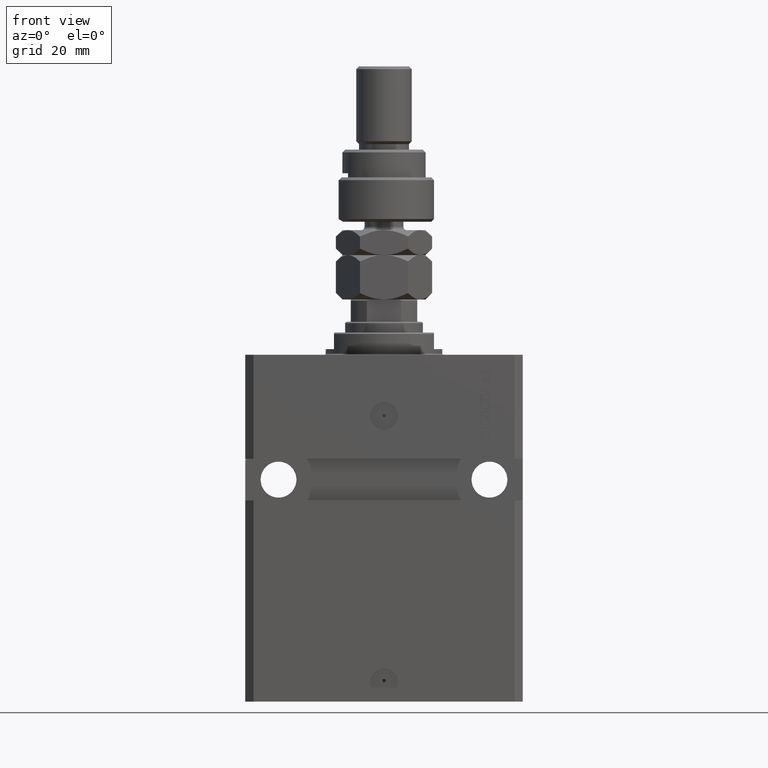
[diagram: clean part render]
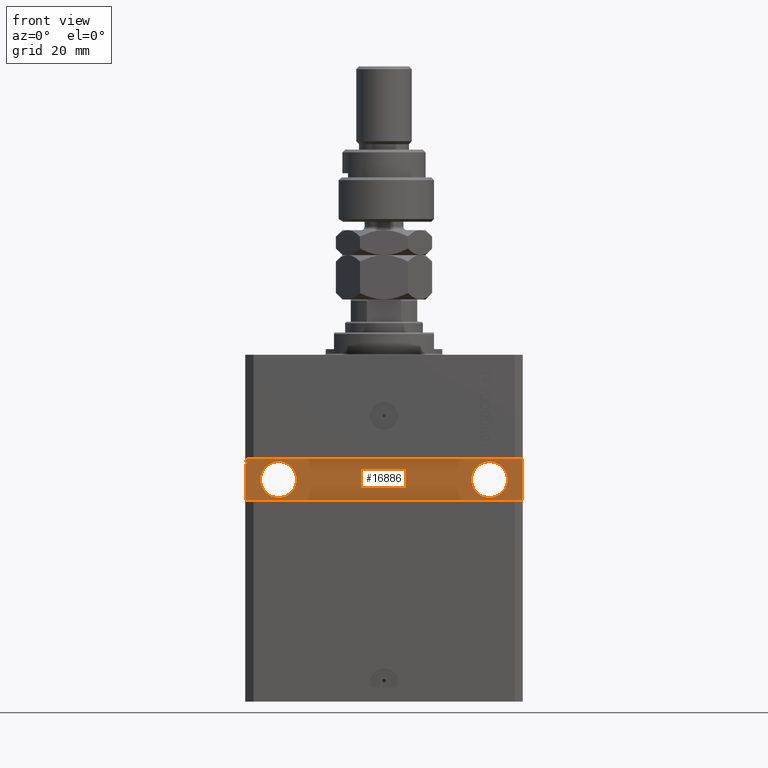
[diagram: same view with one face highlighted and labeled with its STEP entity id]
A machine part, front view. The second image highlights one B-rep face of the part: STEP entity #16886.
In plain terms, the highlighted planar face has unit normal (0, -1, 0).
Its self-contained STEP definition (entity closure, byte-faithful):
#391 = VECTOR ( 'NONE', #27434, 1000.000000000000000 ) ;
#480 = DIRECTION ( 'NONE',  ( -1.000000000000000000, -1.387778780781445676E-16, -1.387778780781445676E-16 ) ) ;
#589 = DIRECTION ( 'NONE',  ( 1.000000000000000000, 0.000000000000000000, 0.000000000000000000 ) ) ;
#1554 = VERTEX_POINT ( 'NONE', #33080 ) ;
#1909 = CIRCLE ( 'NONE', #47568, 6.499999999999999112 ) ;
#2266 = CARTESIAN_POINT ( 'NONE',  ( -50.00000000000001421, -32.50000000000000711, -37.50000000000000711 ) ) ;
#2302 = EDGE_CURVE ( 'NONE', #23145, #34241, #18746, .T. ) ;
#3083 = DIRECTION ( 'NONE',  ( 1.000000000000000000, 1.387778780781445676E-16, 0.000000000000000000 ) ) ;
#3384 = CARTESIAN_POINT ( 'NONE',  ( -49.50000000000000711, -32.50000000000000711, -37.99999999999999289 ) ) ;
#3576 = VERTEX_POINT ( 'NONE', #3384 ) ;
#3577 = CARTESIAN_POINT ( 'NONE',  ( 44.50000000000001421, -32.50000000000000000, -45.00000000000000000 ) ) ;
#3708 = CARTESIAN_POINT ( 'NONE',  ( -50.00000000000001421, -32.50000000000000711, -37.50000000000000711 ) ) ;
#3845 = CARTESIAN_POINT ( 'NONE',  ( 4.616128571667027759E-15, -32.50000000000000000, 0.000000000000000000 ) ) ;
#4123 = EDGE_CURVE ( 'NONE', #47399, #30250, #37483, .T. ) ;
#4857 = VECTOR ( 'NONE', #20754, 1000.000000000000000 ) ;
#4913 = DIRECTION ( 'NONE',  ( 8.806446732139697737E-17, -1.000000000000000000, 1.232595164407830672E-32 ) ) ;
#4932 = VECTOR ( 'NONE', #29257, 1000.000000000000000 ) ;
#6210 = ORIENTED_EDGE ( 'NONE', *, *, #12109, .F. ) ;
#7069 = LINE ( 'NONE', #45142, #24575 ) ;
#7701 = VECTOR ( 'NONE', #34099, 1000.000000000000000 ) ;
#7840 = DIRECTION ( 'NONE',  ( 3.791485858024926499E-13, 5.261743621399925654E-29, 1.000000000000000000 ) ) ;
#7896 = CARTESIAN_POINT ( 'NONE',  ( -37.99999999999998579, -32.50000000000000711, -45.00000000000000711 ) ) ;
#8025 = CARTESIAN_POINT ( 'NONE',  ( 49.99999999999999289, -32.49999999999999289, -52.49999999999998579 ) ) ;
#8153 = CARTESIAN_POINT ( 'NONE',  ( -49.50000000000000711, -32.50000000000000711, -37.62144886363635976 ) ) ;
#8254 = EDGE_CURVE ( 'NONE', #13488, #45503, #38071, .T. ) ;
#8454 = AXIS2_PLACEMENT_3D ( 'NONE', #35562, #4913, #589 ) ;
#8766 = ORIENTED_EDGE ( 'NONE', *, *, #10494, .F. ) ;
#10494 = EDGE_CURVE ( 'NONE', #30545, #23341, #24674, .T. ) ;
#11008 = DIRECTION ( 'NONE',  ( 0.000000000000000000, 0.000000000000000000, -1.000000000000000000 ) ) ;
#11105 = CARTESIAN_POINT ( 'NONE',  ( -49.50000000000000711, -32.49999999999999289, -37.99999999999999289 ) ) ;
#11302 = CARTESIAN_POINT ( 'NONE',  ( -49.50000000000001421, -32.50000000000000711, -39.43474002179300442 ) ) ;
#11353 = ORIENTED_EDGE ( 'NONE', *, *, #28951, .T. ) ;
#12109 = EDGE_CURVE ( 'NONE', #23341, #30545, #1909, .T. ) ;
#12952 = EDGE_CURVE ( 'NONE', #34241, #23145, #47595, .T. ) ;
#13488 = VERTEX_POINT ( 'NONE', #34159 ) ;
#13673 = LINE ( 'NONE', #49182, #4932 ) ;
#13783 = EDGE_CURVE ( 'NONE', #3576, #40549, #13939, .T. ) ;
#13939 = LINE ( 'NONE', #11105, #7701 ) ;
#14004 = CARTESIAN_POINT ( 'NONE',  ( -50.00000000000001421, -32.50000000000000711, -37.62144886363636687 ) ) ;
#14583 = CARTESIAN_POINT ( 'NONE',  ( -50.00000000000001421, -32.50000000000000711, -37.50000000000000711 ) ) ;
#15417 = ORIENTED_EDGE ( 'NONE', *, *, #33748, .T. ) ;
#15826 = FACE_OUTER_BOUND ( 'NONE', #28631, .T. ) ;
#16317 = AXIS2_PLACEMENT_3D ( 'NONE', #43499, #35828, #36087 ) ;
#16432 = ORIENTED_EDGE ( 'NONE', *, *, #22077, .T. ) ;
#16886 = ADVANCED_FACE ( 'NONE', ( #50063, #38048, #15826 ), #23238, .T. ) ;
#17319 = DIRECTION ( 'NONE',  ( 1.101411730780568590E-16, -1.000000000000000000, 0.000000000000000000 ) ) ;
#17425 = CARTESIAN_POINT ( 'NONE',  ( -31.49999999999998579, -32.50000000000000711, -45.00000000000000711 ) ) ;
#18259 = ORIENTED_EDGE ( 'NONE', *, *, #13783, .T. ) ;
#18746 = CIRCLE ( 'NONE', #16317, 6.499999999999999112 ) ;
#19389 = DIRECTION ( 'NONE',  ( 1.387778780781445676E-16, -1.000000000000000000, 0.000000000000000000 ) ) ;
#19453 = VECTOR ( 'NONE', #43063, 1000.000000000000000 ) ;
#20539 = ORIENTED_EDGE ( 'NONE', *, *, #44313, .T. ) ;
#20754 = DIRECTION ( 'NONE',  ( 0.000000000000000000, 0.000000000000000000, -1.000000000000000000 ) ) ;
#21145 = VERTEX_POINT ( 'NONE', #21438 ) ;
#21438 = CARTESIAN_POINT ( 'NONE',  ( 49.99999999999999289, -32.49999999999999289, -37.49999999999999289 ) ) ;
#21572 = CARTESIAN_POINT ( 'NONE',  ( -50.00000000000001421, -32.50000000000000711, -52.50000000000000000 ) ) ;
#22077 = EDGE_CURVE ( 'NONE', #33496, #21145, #31009, .T. ) ;
#22803 = EDGE_CURVE ( 'NONE', #40549, #27530, #46595, .T. ) ;
#22916 = VECTOR ( 'NONE', #29584, 1000.000000000000000 ) ;
#23064 = AXIS2_PLACEMENT_3D ( 'NONE', #7896, #46716, #35220 ) ;
#23145 = VERTEX_POINT ( 'NONE', #46269 ) ;
#23238 = PLANE ( 'NONE',  #49491 ) ;
#23341 = VERTEX_POINT ( 'NONE', #45466 ) ;
#23474 = EDGE_LOOP ( 'NONE', ( #49824, #39946 ) ) ;
#23655 = CARTESIAN_POINT ( 'NONE',  ( -49.50000000000016342, -32.50000000000000711, -39.86910993535713743 ) ) ;
#24154 = LINE ( 'NONE', #27497, #19453 ) ;
#24277 = VECTOR ( 'NONE', #480, 1000.000000000000000 ) ;
#24570 = CARTESIAN_POINT ( 'NONE',  ( -50.00000000000001421, -32.50000000000000711, -38.87066340383893959 ) ) ;
#24575 = VECTOR ( 'NONE', #30318, 1000.000000000000000 ) ;
#24674 = CIRCLE ( 'NONE', #23064, 6.499999999999999112 ) ;
#26031 = VECTOR ( 'NONE', #7840, 1000.000000000000000 ) ;
#26216 = VECTOR ( 'NONE', #11008, 1000.000000000000000 ) ;
#26411 = ORIENTED_EDGE ( 'NONE', *, *, #35859, .F. ) ;
#27434 = DIRECTION ( 'NONE',  ( 0.000000000000000000, 0.000000000000000000, 1.000000000000000000 ) ) ;
#27497 = CARTESIAN_POINT ( 'NONE',  ( -49.50000000000000711, -32.49999999999999289, -37.62144886363635976 ) ) ;
#27530 = VERTEX_POINT ( 'NONE', #24570 ) ;
#28331 = CARTESIAN_POINT ( 'NONE',  ( -49.49999999999999289, -32.50000000000000711, -39.43474004052496440 ) ) ;
#28388 = EDGE_LOOP ( 'NONE', ( #8766, #6210 ) ) ;
#28426 = LINE ( 'NONE', #40164, #4857 ) ;
#28631 = EDGE_LOOP ( 'NONE', ( #47243, #40416, #26411, #35626, #48403, #20539, #16432, #11353, #44827, #40487, #15417, #18259 ) ) ;
#28951 = EDGE_CURVE ( 'NONE', #21145, #13488, #39029, .T. ) ;
#29257 = DIRECTION ( 'NONE',  ( 1.000000000000000000, 1.387778780781445676E-16, 1.387778780781445676E-16 ) ) ;
#29430 = VECTOR ( 'NONE', #31243, 1000.000000000000000 ) ;
#29584 = DIRECTION ( 'NONE',  ( 0.000000000000000000, 0.000000000000000000, -1.000000000000000000 ) ) ;
#30250 = VERTEX_POINT ( 'NONE', #21572 ) ;
#30318 = DIRECTION ( 'NONE',  ( -1.000000000000000000, -0.000000000000000000, -0.000000000000000000 ) ) ;
#30545 = VERTEX_POINT ( 'NONE', #17425 ) ;
#30725 = LINE ( 'NONE', #11302, #29430 ) ;
#31009 = LINE ( 'NONE', #8025, #391 ) ;
#31141 = CARTESIAN_POINT ( 'NONE',  ( 49.99999999999999289, -32.49999999999999289, -52.49999999999998579 ) ) ;
#31243 = DIRECTION ( 'NONE',  ( 1.000000000000000000, 0.000000000000000000, 0.000000000000000000 ) ) ;
#32154 = DIRECTION ( 'NONE',  ( 1.000000000000000000, 0.000000000000000000, 0.000000000000000000 ) ) ;
#33080 = CARTESIAN_POINT ( 'NONE',  ( -49.49999999999977973, -32.50000000000000711, -38.87066337907741342 ) ) ;
#33398 = CARTESIAN_POINT ( 'NONE',  ( -50.00000000000001421, -32.50000000000000711, -37.99999999999999289 ) ) ;
#33496 = VERTEX_POINT ( 'NONE', #31141 ) ;
#33748 = EDGE_CURVE ( 'NONE', #44184, #3576, #28426, .T. ) ;
#34099 = DIRECTION ( 'NONE',  ( -1.000000000000000000, -0.000000000000000000, -0.000000000000000000 ) ) ;
#34159 = CARTESIAN_POINT ( 'NONE',  ( -50.00000000000001421, -32.50000000000000711, -37.50000000000000711 ) ) ;
#34241 = VERTEX_POINT ( 'NONE', #3577 ) ;
#34595 = EDGE_CURVE ( 'NONE', #44184, #45503, #24154, .T. ) ;
#35220 = DIRECTION ( 'NONE',  ( 1.000000000000000000, 0.000000000000000000, 0.000000000000000000 ) ) ;
#35360 = DIRECTION ( 'NONE',  ( 0.000000000000000000, 0.000000000000000000, -1.000000000000000000 ) ) ;
#35562 = CARTESIAN_POINT ( 'NONE',  ( 38.00000000000001421, -32.50000000000000000, -45.00000000000000000 ) ) ;
#35626 = ORIENTED_EDGE ( 'NONE', *, *, #48083, .F. ) ;
#35828 = DIRECTION ( 'NONE',  ( 8.806446732139697737E-17, -1.000000000000000000, 1.232595164407830672E-32 ) ) ;
#35859 = EDGE_CURVE ( 'NONE', #47737, #1554, #47148, .T. ) ;
#36087 = DIRECTION ( 'NONE',  ( 1.000000000000000000, 0.000000000000000000, 0.000000000000000000 ) ) ;
#37483 = LINE ( 'NONE', #2266, #22916 ) ;
#37562 = CARTESIAN_POINT ( 'NONE',  ( -50.00000000000001421, -32.50000000000000711, -39.43474002179300442 ) ) ;
#38048 = FACE_BOUND ( 'NONE', #28388, .T. ) ;
#38071 = LINE ( 'NONE', #14583, #26216 ) ;
#39029 = LINE ( 'NONE', #46175, #24277 ) ;
#39946 = ORIENTED_EDGE ( 'NONE', *, *, #2302, .F. ) ;
#40062 = CARTESIAN_POINT ( 'NONE',  ( -37.99999999999998579, -32.50000000000000711, -45.00000000000000711 ) ) ;
#40164 = CARTESIAN_POINT ( 'NONE',  ( -49.50000000000000711, -32.49999999999999289, -37.62144886363635976 ) ) ;
#40416 = ORIENTED_EDGE ( 'NONE', *, *, #40651, .F. ) ;
#40487 = ORIENTED_EDGE ( 'NONE', *, *, #34595, .F. ) ;
#40549 = VERTEX_POINT ( 'NONE', #33398 ) ;
#40651 = EDGE_CURVE ( 'NONE', #1554, #27530, #7069, .T. ) ;
#43063 = DIRECTION ( 'NONE',  ( -1.000000000000000000, -0.000000000000000000, -0.000000000000000000 ) ) ;
#43499 = CARTESIAN_POINT ( 'NONE',  ( 38.00000000000001421, -32.50000000000000000, -45.00000000000000000 ) ) ;
#44184 = VERTEX_POINT ( 'NONE', #8153 ) ;
#44313 = EDGE_CURVE ( 'NONE', #30250, #33496, #13673, .T. ) ;
#44827 = ORIENTED_EDGE ( 'NONE', *, *, #8254, .T. ) ;
#45142 = CARTESIAN_POINT ( 'NONE',  ( -49.50000000000001421, -32.50000000000001421, -38.87066340383893959 ) ) ;
#45257 = VECTOR ( 'NONE', #35360, 1000.000000000000000 ) ;
#45466 = CARTESIAN_POINT ( 'NONE',  ( -44.49999999999998579, -32.50000000000000711, -45.00000000000000711 ) ) ;
#45503 = VERTEX_POINT ( 'NONE', #14004 ) ;
#46175 = CARTESIAN_POINT ( 'NONE',  ( 49.99999999999999289, -32.49999999999999289, -37.49999999999999289 ) ) ;
#46269 = CARTESIAN_POINT ( 'NONE',  ( 31.50000000000001421, -32.50000000000000000, -45.00000000000000000 ) ) ;
#46595 = LINE ( 'NONE', #3708, #45257 ) ;
#46716 = DIRECTION ( 'NONE',  ( 1.101411730780568590E-16, -1.000000000000000000, 0.000000000000000000 ) ) ;
#47148 = LINE ( 'NONE', #23655, #26031 ) ;
#47243 = ORIENTED_EDGE ( 'NONE', *, *, #22803, .T. ) ;
#47399 = VERTEX_POINT ( 'NONE', #37562 ) ;
#47568 = AXIS2_PLACEMENT_3D ( 'NONE', #40062, #17319, #32154 ) ;
#47595 = CIRCLE ( 'NONE', #8454, 6.499999999999999112 ) ;
#47737 = VERTEX_POINT ( 'NONE', #28331 ) ;
#48083 = EDGE_CURVE ( 'NONE', #47399, #47737, #30725, .T. ) ;
#48403 = ORIENTED_EDGE ( 'NONE', *, *, #4123, .T. ) ;
#49182 = CARTESIAN_POINT ( 'NONE',  ( -50.00000000000001421, -32.50000000000000711, -52.50000000000000000 ) ) ;
#49491 = AXIS2_PLACEMENT_3D ( 'NONE', #3845, #19389, #3083 ) ;
#49824 = ORIENTED_EDGE ( 'NONE', *, *, #12952, .F. ) ;
#50063 = FACE_BOUND ( 'NONE', #23474, .T. ) ;